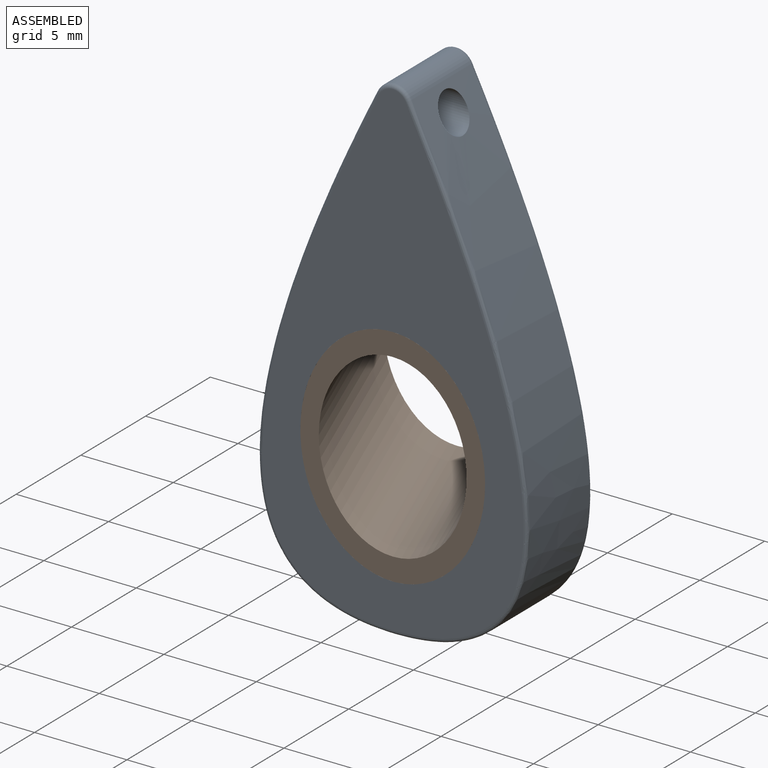
[diagram: assembled view]
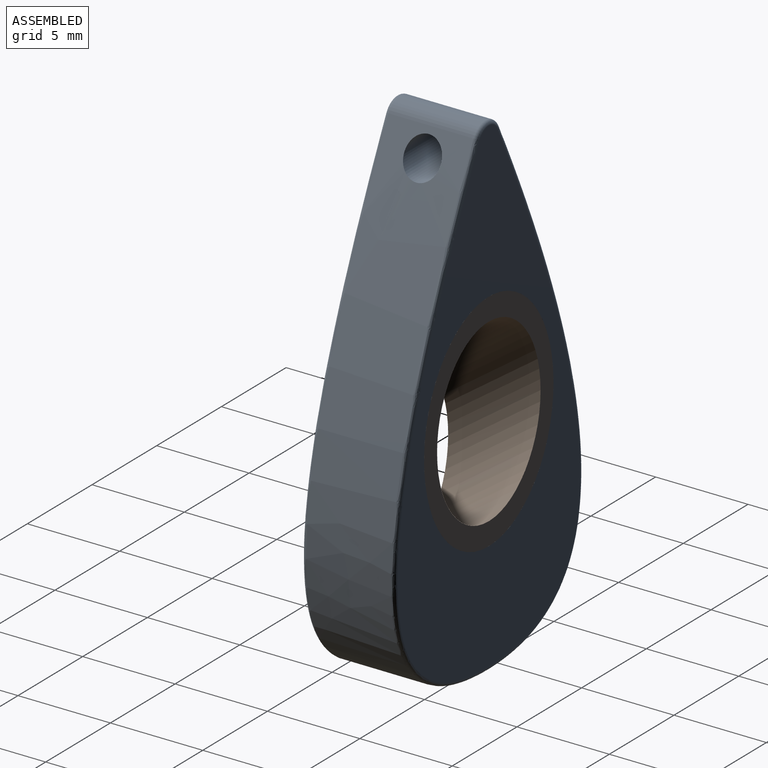
[diagram: assembled view, second angle]
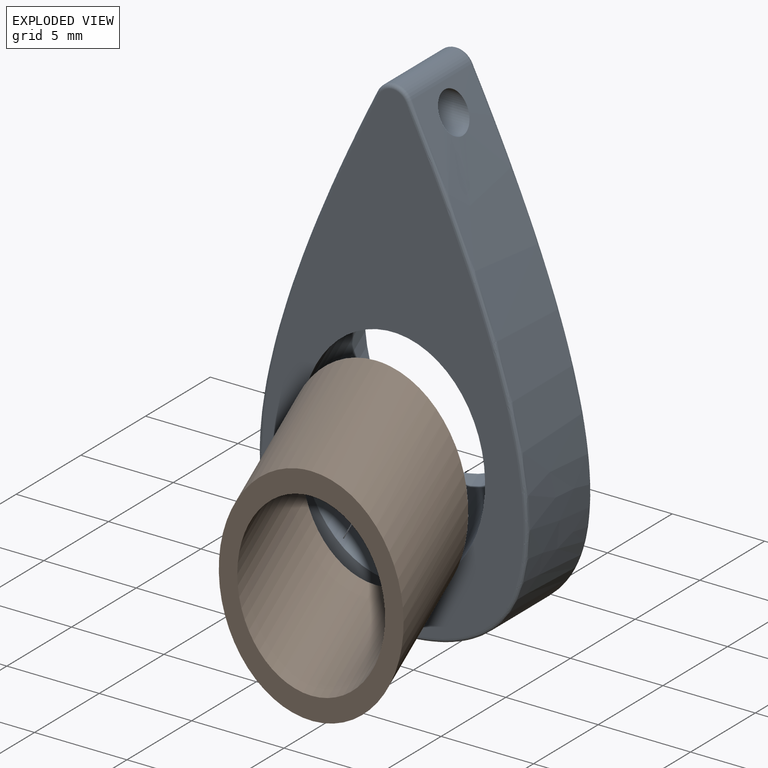
[diagram: exploded view]
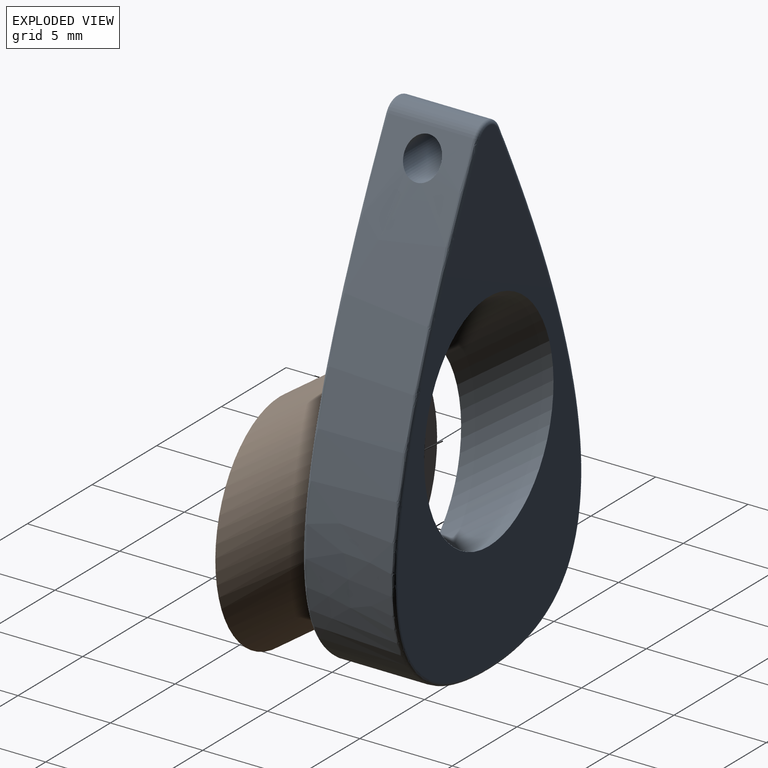
[diagram: exploded view, second angle]
ASSEMBLY  parts=2 mates=2
PART A: 13 faces, bbox 17.8x16.5x27.6 mm
  f0: extruded ~26.33x7.28mm, area 144.2mm2, adj f4,f5,f6,f9,f12
  f1: plane 26.48x14.18mm, normal (0,-1,0), area 162.9mm2, adj f3,f7,f8,f9
  f2: plane 26.48x14.18mm, normal (0,1,0), area 162.9mm2, adj f3,f10,f11,f12
  f3: cylinder r=5mm len=16.51mm, axis (0,-0.82,-0.57), area 191.8mm2, adj f1,f2
  f4: extruded ~26.33x7.28mm, area 144.2mm2, adj f0,f5,f6,f7,f10
  f5: cylinder r=1mm len=4.6mm, axis (0,1,0), area 10.2mm2, adj f0,f4,f8,f11
  f6: cylinder r=1mm len=4.07mm, axis (1,0,0), area 19.5mm2, adj f0,f4
  f7: bspline ~27.65x16.17mm, area 10mm2, adj f1,f4,f8,f9
  f8: torus R=0.8mm, axis (0,-1,0), area 0.6mm2, adj f1,f5,f7,f9
  f9: bspline ~27.65x16.18mm, area 10mm2, adj f0,f1,f7,f8
  f10: bspline ~27.65x16.18mm, area 10mm2, adj f2,f4,f11,f12
  f11: torus R=0.8mm, axis (0,-1,0), area 0.6mm2, adj f2,f5,f10,f12
  f12: bspline ~27.65x16.18mm, area 10mm2, adj f0,f2,f10,f11
PART B: 4 faces, bbox 10x13.2x10 mm
  f0: cylinder r=5mm len=13.16mm, axis (0,1,0), area 191.8mm2, adj f1,f2
  f1: plane 10x10mm, normal (0,0.82,0.57), area 34.5mm2, adj f0,f3
  f2: plane 10x10mm, normal (0,-0.82,-0.57), area 34.5mm2, adj f0,f3
  f3: cylinder r=4mm len=11.75mm, axis (0,1,0), area 153.4mm2, adj f1,f2
PLACE A t=(-0.04,3.45,-13.14)mm fixed
PLACE B rot(axis=(0,-0.95,-0.3),180deg) t=(-0.04,9.19,3.09)mm
MATE fastened A.f3 <-> B.f0  axis (0,-0.82,-0.57) through (-0.04,0.95,-2.68)mm
MATE parallel A.f1 <-> B.f2  axis (0,-1,0) through (-0.04,-1.55,-0.57)mm
